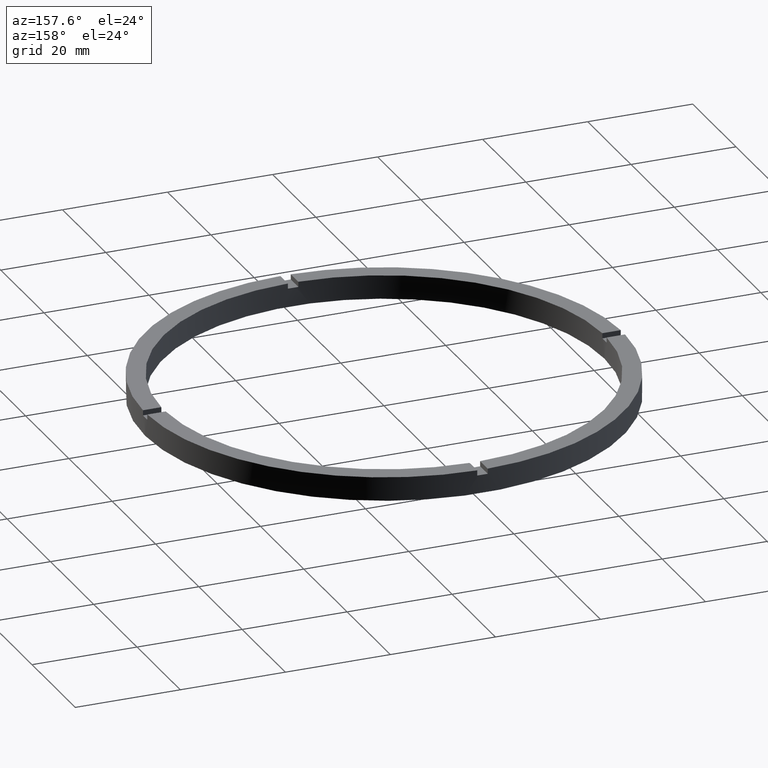
[diagram: clean part render]
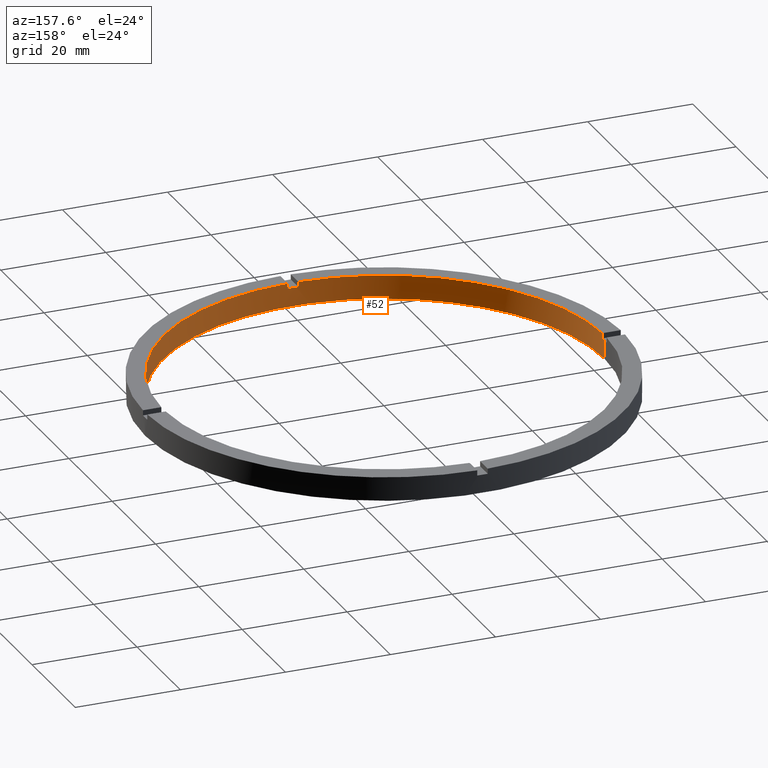
[diagram: same view with one face highlighted and labeled with its STEP entity id]
A machine part, auxiliary view. The second image highlights one B-rep face of the part: STEP entity #52.
In plain terms, the highlighted cylindrical surface (partial cylindrical patch) has radius 42 mm, axis along (-0, -0, -1).
Its self-contained STEP definition (entity closure, byte-faithful):
#5 = FACE_OUTER_BOUND ( 'NONE', #461, .T. ) ;
#9 = DIRECTION ( 'NONE',  ( -0.000000000000000000, -0.000000000000000000, -1.000000000000000000 ) ) ;
#15 = EDGE_CURVE ( 'NONE', #162, #782, #495, .T. ) ;
#16 = DIRECTION ( 'NONE',  ( 1.000000000000000000, 0.000000000000000000, 0.000000000000000000 ) ) ;
#24 = EDGE_CURVE ( 'NONE', #463, #775, #233, .T. ) ;
#32 = CARTESIAN_POINT ( 'NONE',  ( 0.9999999999998416822, -41.98809355043403713, 3.499999999999999556 ) ) ;
#37 = DIRECTION ( 'NONE',  ( 0.000000000000000000, 0.000000000000000000, 1.000000000000000000 ) ) ;
#44 = CARTESIAN_POINT ( 'NONE',  ( 0.000000000000000000, 0.000000000000000000, 3.499999999999999556 ) ) ;
#52 = ADVANCED_FACE ( 'NONE', ( #5 ), #269, .F. ) ;
#59 = CIRCLE ( 'NONE', #647, 42.00000000000000000 ) ;
#86 = AXIS2_PLACEMENT_3D ( 'NONE', #357, #120, #742 ) ;
#100 = LINE ( 'NONE', #175, #608 ) ;
#102 = CARTESIAN_POINT ( 'NONE',  ( 0.000000000000000000, 0.000000000000000000, 0.000000000000000000 ) ) ;
#109 = LINE ( 'NONE', #779, #643 ) ;
#111 = AXIS2_PLACEMENT_3D ( 'NONE', #754, #622, #16 ) ;
#114 = LINE ( 'NONE', #349, #368 ) ;
#115 = EDGE_CURVE ( 'NONE', #783, #723, #100, .T. ) ;
#120 = DIRECTION ( 'NONE',  ( 0.000000000000000000, 0.000000000000000000, 1.000000000000000000 ) ) ;
#132 = CARTESIAN_POINT ( 'NONE',  ( -1.000000000000158318, -41.98809355043403002, 3.499999999999999556 ) ) ;
#151 = ORIENTED_EDGE ( 'NONE', *, *, #193, .T. ) ;
#162 = VERTEX_POINT ( 'NONE', #620 ) ;
#175 = CARTESIAN_POINT ( 'NONE',  ( -1.000000000000158318, -41.98809355043403002, 4.500000000000000000 ) ) ;
#193 = EDGE_CURVE ( 'NONE', #462, #723, #358, .T. ) ;
#209 = ORIENTED_EDGE ( 'NONE', *, *, #565, .T. ) ;
#218 = DIRECTION ( 'NONE',  ( -0.000000000000000000, 0.000000000000000000, 1.000000000000000000 ) ) ;
#229 = ORIENTED_EDGE ( 'NONE', *, *, #24, .T. ) ;
#231 = ORIENTED_EDGE ( 'NONE', *, *, #625, .F. ) ;
#233 = CIRCLE ( 'NONE', #111, 42.00000000000000000 ) ;
#238 = EDGE_CURVE ( 'NONE', #447, #510, #343, .T. ) ;
#242 = VERTEX_POINT ( 'NONE', #490 ) ;
#243 = EDGE_CURVE ( 'NONE', #242, #721, #605, .T. ) ;
#253 = CARTESIAN_POINT ( 'NONE',  ( -41.98809355043403713, -1.000000000000029310, 4.500000000000000000 ) ) ;
#255 = VERTEX_POINT ( 'NONE', #667 ) ;
#262 = CARTESIAN_POINT ( 'NONE',  ( 0.9999999999998416822, -41.98809355043403713, 4.500000000000000000 ) ) ;
#268 = DIRECTION ( 'NONE',  ( 0.000000000000000000, 0.000000000000000000, 1.000000000000000000 ) ) ;
#269 = CYLINDRICAL_SURFACE ( 'NONE', #619, 42.00000000000000000 ) ;
#271 = CARTESIAN_POINT ( 'NONE',  ( 0.000000000000000000, 0.000000000000000000, 4.500000000000000000 ) ) ;
#272 = CARTESIAN_POINT ( 'NONE',  ( -42.00000000000000000, 0.000000000000000000, 4.500000000000000000 ) ) ;
#277 = DIRECTION ( 'NONE',  ( -1.000000000000000000, 0.000000000000000000, 0.000000000000000000 ) ) ;
#278 = DIRECTION ( 'NONE',  ( 1.000000000000000000, 0.000000000000000000, 0.000000000000000000 ) ) ;
#313 = DIRECTION ( 'NONE',  ( -0.000000000000000000, -0.000000000000000000, -1.000000000000000000 ) ) ;
#315 = DIRECTION ( 'NONE',  ( 1.000000000000000000, 0.000000000000000000, 0.000000000000000000 ) ) ;
#317 = LINE ( 'NONE', #272, #585 ) ;
#322 = DIRECTION ( 'NONE',  ( -0.000000000000000000, -0.000000000000000000, -1.000000000000000000 ) ) ;
#336 = CARTESIAN_POINT ( 'NONE',  ( 0.000000000000000000, 0.000000000000000000, 3.499999999999999556 ) ) ;
#343 = CIRCLE ( 'NONE', #562, 42.00000000000000000 ) ;
#349 = CARTESIAN_POINT ( 'NONE',  ( -41.98809355043403713, -1.000000000000029310, 4.500000000000000000 ) ) ;
#357 = CARTESIAN_POINT ( 'NONE',  ( 0.000000000000000000, 0.000000000000000000, 4.500000000000000000 ) ) ;
#358 = CIRCLE ( 'NONE', #86, 42.00000000000000000 ) ;
#359 = EDGE_CURVE ( 'NONE', #783, #782, #363, .T. ) ;
#363 = CIRCLE ( 'NONE', #671, 42.00000000000000000 ) ;
#367 = AXIS2_PLACEMENT_3D ( 'NONE', #102, #554, #661 ) ;
#368 = VECTOR ( 'NONE', #9, 1000.000000000000000 ) ;
#387 = DIRECTION ( 'NONE',  ( 0.000000000000000000, 0.000000000000000000, 1.000000000000000000 ) ) ;
#395 = EDGE_CURVE ( 'NONE', #462, #510, #114, .T. ) ;
#402 = DIRECTION ( 'NONE',  ( -0.000000000000000000, -0.000000000000000000, -1.000000000000000000 ) ) ;
#418 = ORIENTED_EDGE ( 'NONE', *, *, #15, .F. ) ;
#420 = ORIENTED_EDGE ( 'NONE', *, *, #395, .F. ) ;
#424 = DIRECTION ( 'NONE',  ( -0.000000000000000000, -0.000000000000000000, -1.000000000000000000 ) ) ;
#447 = VERTEX_POINT ( 'NONE', #499 ) ;
#456 = ORIENTED_EDGE ( 'NONE', *, *, #492, .T. ) ;
#461 = EDGE_LOOP ( 'NONE', ( #229, #209, #726, #691, #727, #420, #151, #696, #760, #418, #456, #231 ) ) ;
#462 = VERTEX_POINT ( 'NONE', #253 ) ;
#463 = VERTEX_POINT ( 'NONE', #669 ) ;
#469 = DIRECTION ( 'NONE',  ( 0.000000000000000000, 0.000000000000000000, 1.000000000000000000 ) ) ;
#480 = EDGE_CURVE ( 'NONE', #447, #242, #317, .T. ) ;
#490 = CARTESIAN_POINT ( 'NONE',  ( -42.00000000000000000, 0.000000000000000000, 0.000000000000000000 ) ) ;
#492 = EDGE_CURVE ( 'NONE', #162, #255, #59, .T. ) ;
#495 = LINE ( 'NONE', #262, #769 ) ;
#499 = CARTESIAN_POINT ( 'NONE',  ( -42.00000000000000000, 0.000000000000000000, 3.499999999999999556 ) ) ;
#510 = VERTEX_POINT ( 'NONE', #677 ) ;
#554 = DIRECTION ( 'NONE',  ( 0.000000000000000000, 0.000000000000000000, 1.000000000000000000 ) ) ;
#562 = AXIS2_PLACEMENT_3D ( 'NONE', #44, #387, #648 ) ;
#565 = EDGE_CURVE ( 'NONE', #775, #721, #109, .T. ) ;
#585 = VECTOR ( 'NONE', #402, 1000.000000000000000 ) ;
#605 = CIRCLE ( 'NONE', #367, 42.00000000000000000 ) ;
#608 = VECTOR ( 'NONE', #37, 1000.000000000000000 ) ;
#619 = AXIS2_PLACEMENT_3D ( 'NONE', #271, #424, #277 ) ;
#620 = CARTESIAN_POINT ( 'NONE',  ( 0.9999999999998416822, -41.98809355043403713, 4.500000000000000000 ) ) ;
#622 = DIRECTION ( 'NONE',  ( 0.000000000000000000, 0.000000000000000000, 1.000000000000000000 ) ) ;
#625 = EDGE_CURVE ( 'NONE', #463, #255, #650, .T. ) ;
#627 = CARTESIAN_POINT ( 'NONE',  ( -1.000000000000158318, -41.98809355043403002, 4.500000000000000000 ) ) ;
#643 = VECTOR ( 'NONE', #322, 1000.000000000000000 ) ;
#647 = AXIS2_PLACEMENT_3D ( 'NONE', #665, #268, #315 ) ;
#648 = DIRECTION ( 'NONE',  ( 1.000000000000000000, 0.000000000000000000, 0.000000000000000000 ) ) ;
#650 = LINE ( 'NONE', #685, #655 ) ;
#655 = VECTOR ( 'NONE', #469, 1000.000000000000000 ) ;
#661 = DIRECTION ( 'NONE',  ( 1.000000000000000000, 0.000000000000000000, 0.000000000000000000 ) ) ;
#665 = CARTESIAN_POINT ( 'NONE',  ( 0.000000000000000000, 0.000000000000000000, 4.500000000000000000 ) ) ;
#667 = CARTESIAN_POINT ( 'NONE',  ( 41.98809355043403002, -1.000000000000156319, 4.500000000000000000 ) ) ;
#669 = CARTESIAN_POINT ( 'NONE',  ( 41.98809355043403002, -1.000000000000156319, 3.499999999999999556 ) ) ;
#671 = AXIS2_PLACEMENT_3D ( 'NONE', #336, #218, #278 ) ;
#677 = CARTESIAN_POINT ( 'NONE',  ( -41.98809355043403713, -1.000000000000029310, 3.499999999999999556 ) ) ;
#679 = CARTESIAN_POINT ( 'NONE',  ( 42.00000000000000000, 5.143516556418883322E-15, 0.000000000000000000 ) ) ;
#683 = CARTESIAN_POINT ( 'NONE',  ( 42.00000000000000000, 5.143516556418883322E-15, 3.499999999999999556 ) ) ;
#685 = CARTESIAN_POINT ( 'NONE',  ( 41.98809355043403002, -1.000000000000156319, 4.500000000000000000 ) ) ;
#691 = ORIENTED_EDGE ( 'NONE', *, *, #480, .F. ) ;
#696 = ORIENTED_EDGE ( 'NONE', *, *, #115, .F. ) ;
#721 = VERTEX_POINT ( 'NONE', #679 ) ;
#723 = VERTEX_POINT ( 'NONE', #627 ) ;
#726 = ORIENTED_EDGE ( 'NONE', *, *, #243, .F. ) ;
#727 = ORIENTED_EDGE ( 'NONE', *, *, #238, .T. ) ;
#742 = DIRECTION ( 'NONE',  ( 1.000000000000000000, 0.000000000000000000, 0.000000000000000000 ) ) ;
#754 = CARTESIAN_POINT ( 'NONE',  ( 0.000000000000000000, 0.000000000000000000, 3.499999999999999556 ) ) ;
#760 = ORIENTED_EDGE ( 'NONE', *, *, #359, .T. ) ;
#769 = VECTOR ( 'NONE', #313, 1000.000000000000000 ) ;
#775 = VERTEX_POINT ( 'NONE', #683 ) ;
#779 = CARTESIAN_POINT ( 'NONE',  ( 42.00000000000000000, 5.143516556418883322E-15, 4.500000000000000000 ) ) ;
#782 = VERTEX_POINT ( 'NONE', #32 ) ;
#783 = VERTEX_POINT ( 'NONE', #132 ) ;